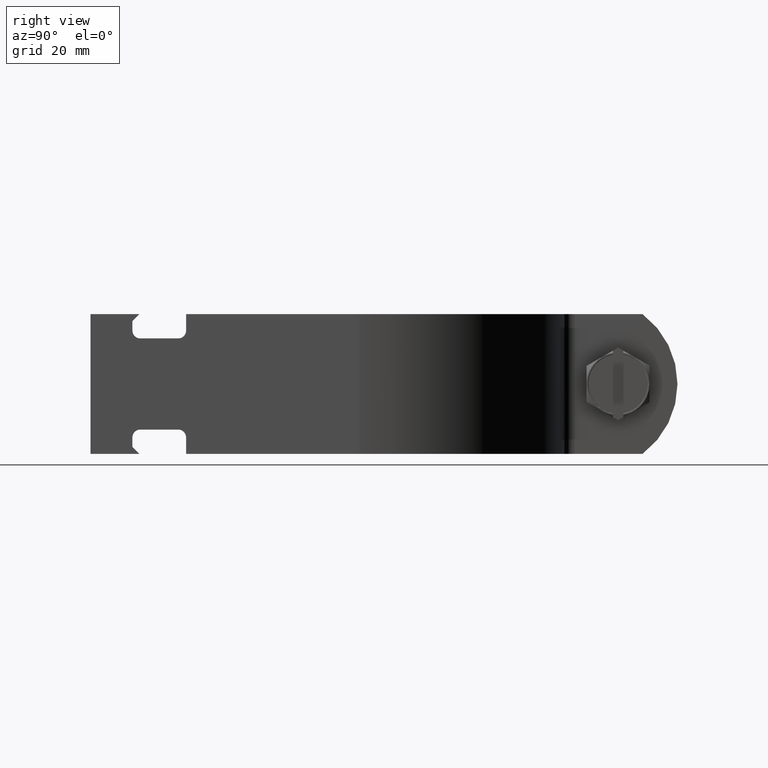
[diagram: clean part render]
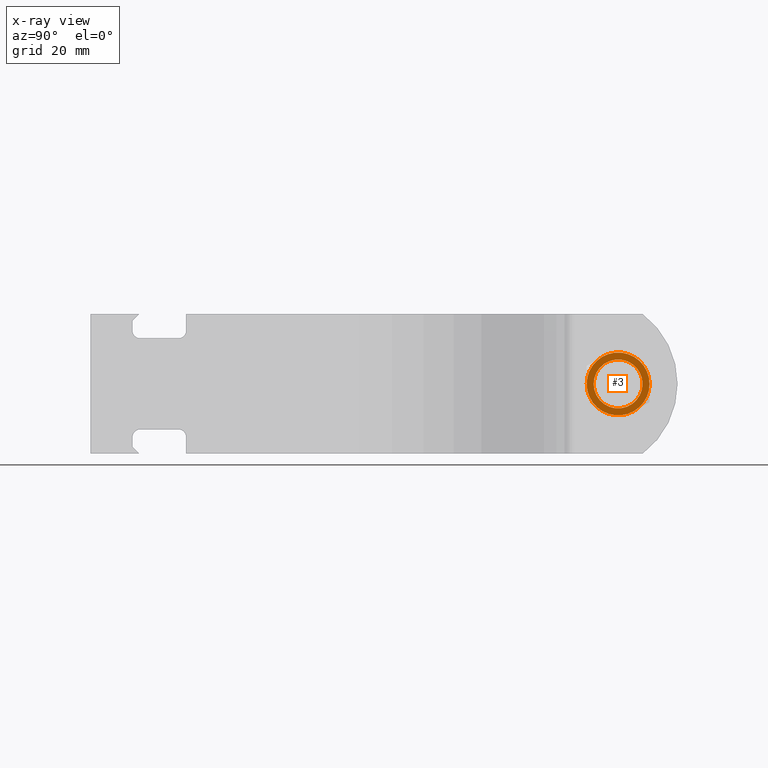
[diagram: x-ray — body ghosted, one internal face saturated and labeled with its STEP entity id]
A machine part, right view, then the same camera in x-ray: the body is ghosted and one INTERNAL B-rep face — a face not visible from any outside direction — is saturated and labeled: STEP entity #3.
In plain terms, the highlighted planar face has unit normal (-1, -0, -0).
Its self-contained STEP definition (entity closure, byte-faithful):
#3 = ADVANCED_FACE ( 'NONE', ( #2529, #2878 ), #307, .F. ) ;
#59 = CIRCLE ( 'NONE', #2191, 7.143749999999997158 ) ;
#102 = CIRCLE ( 'NONE', #534, 5.556249999999998579 ) ;
#138 = CARTESIAN_POINT ( 'NONE',  ( -5.000000000000005329, 53.18124999999997726, -9.720633968232258185E-16 ) ) ;
#174 = CARTESIAN_POINT ( 'NONE',  ( -5.000000000000004441, 47.62499999999997868, -2.916190190469623221E-16 ) ) ;
#212 = ORIENTED_EDGE ( 'NONE', *, *, #276, .T. ) ;
#225 = DIRECTION ( 'NONE',  ( 2.428309327701568291E-16, -1.000000000000000000, 1.776356839400249676E-15 ) ) ;
#276 = EDGE_CURVE ( 'NONE', #3082, #1053, #59, .T. ) ;
#285 = CARTESIAN_POINT ( 'NONE',  ( -5.000000000000005329, 53.18124999999997726, -9.720633968232258185E-16 ) ) ;
#291 = CARTESIAN_POINT ( 'NONE',  ( -5.000000000000003553, 56.75312499999996874, 6.186668978285080556 ) ) ;
#307 = PLANE ( 'NONE',  #1571 ) ;
#329 = CARTESIAN_POINT ( 'NONE',  ( -5.000000000000007994, 58.73749999999997584, -9.720633968232098440E-16 ) ) ;
#360 = VERTEX_POINT ( 'NONE', #174 ) ;
#420 = AXIS2_PLACEMENT_3D ( 'NONE', #2849, #1386, #225 ) ;
#534 = AXIS2_PLACEMENT_3D ( 'NONE', #3129, #1021, #2180 ) ;
#545 = CIRCLE ( 'NONE', #1089, 7.143749999999997158 ) ;
#575 = DIRECTION ( 'NONE',  ( 2.428309327701568291E-16, -1.000000000000000000, 1.776356839400249676E-15 ) ) ;
#626 = CARTESIAN_POINT ( 'NONE',  ( -5.000000000000005329, 53.18124999999997726, -9.720633968232258185E-16 ) ) ;
#650 = EDGE_CURVE ( 'NONE', #2725, #3082, #2441, .T. ) ;
#656 = CARTESIAN_POINT ( 'NONE',  ( -5.000000000000001776, 49.60937499999997868, 6.186668978285071674 ) ) ;
#893 = DIRECTION ( 'NONE',  ( 3.642463991552352437E-16, -1.000000000000000000, -3.552713678800499352E-15 ) ) ;
#916 = EDGE_CURVE ( 'NONE', #2725, #1313, #3551, .T. ) ;
#943 = CARTESIAN_POINT ( 'NONE',  ( -5.000000000000006217, 53.18124999999997726, -9.720633968232098440E-16 ) ) ;
#1020 = DIRECTION ( 'NONE',  ( 2.428309327701570757E-16, -1.000000000000000000, 0.000000000000000000 ) ) ;
#1021 = DIRECTION ( 'NONE',  ( -1.000000000000000000, -2.727869752446350788E-16, 0.000000000000000000 ) ) ;
#1031 = EDGE_LOOP ( 'NONE', ( #1468, #3765 ) ) ;
#1053 = VERTEX_POINT ( 'NONE', #3730 ) ;
#1089 = AXIS2_PLACEMENT_3D ( 'NONE', #626, #1456, #893 ) ;
#1104 = AXIS2_PLACEMENT_3D ( 'NONE', #2468, #3364, #1020 ) ;
#1137 = CIRCLE ( 'NONE', #2738, 7.143749999999997158 ) ;
#1257 = CARTESIAN_POINT ( 'NONE',  ( -5.000000000000004441, 60.32499999999996732, -9.720633968232258185E-16 ) ) ;
#1296 = DIRECTION ( 'NONE',  ( 1.000000000000000000, 3.035386659626957652E-16, 1.051488783018136909E-16 ) ) ;
#1313 = VERTEX_POINT ( 'NONE', #656 ) ;
#1386 = DIRECTION ( 'NONE',  ( 1.000000000000000000, 3.035386659626957652E-16, 1.051488783018136909E-16 ) ) ;
#1411 = ORIENTED_EDGE ( 'NONE', *, *, #650, .T. ) ;
#1438 = DIRECTION ( 'NONE',  ( 1.000000000000000000, 3.035386659626957652E-16, 1.051488783018136909E-16 ) ) ;
#1456 = DIRECTION ( 'NONE',  ( 1.000000000000000000, 3.035386659626957652E-16, 1.051488783018136909E-16 ) ) ;
#1461 = CARTESIAN_POINT ( 'NONE',  ( -5.000000000000001776, 49.60937499999998579, -6.186668978285078779 ) ) ;
#1468 = ORIENTED_EDGE ( 'NONE', *, *, #2402, .T. ) ;
#1571 = AXIS2_PLACEMENT_3D ( 'NONE', #3201, #3746, #1966 ) ;
#1576 = AXIS2_PLACEMENT_3D ( 'NONE', #3208, #2904, #3171 ) ;
#1659 = ORIENTED_EDGE ( 'NONE', *, *, #3422, .T. ) ;
#1966 = DIRECTION ( 'NONE',  ( 3.035386659626957652E-16, -1.000000000000000000, 0.000000000000000000 ) ) ;
#2097 = CARTESIAN_POINT ( 'NONE',  ( -5.000000000000000888, 46.03749999999998721, -9.720633968232258185E-16 ) ) ;
#2100 = VERTEX_POINT ( 'NONE', #329 ) ;
#2180 = DIRECTION ( 'NONE',  ( 3.122111992759158457E-16, -1.000000000000000000, 0.000000000000000000 ) ) ;
#2184 = EDGE_CURVE ( 'NONE', #360, #2100, #102, .T. ) ;
#2191 = AXIS2_PLACEMENT_3D ( 'NONE', #138, #1296, #2816 ) ;
#2402 = EDGE_CURVE ( 'NONE', #2100, #360, #3661, .T. ) ;
#2441 = CIRCLE ( 'NONE', #1576, 7.143749999999997158 ) ;
#2468 = CARTESIAN_POINT ( 'NONE',  ( -5.000000000000002665, 53.18124999999997726, -9.720633968232256213E-16 ) ) ;
#2529 = FACE_BOUND ( 'NONE', #1031, .T. ) ;
#2688 = VERTEX_POINT ( 'NONE', #291 ) ;
#2724 = ORIENTED_EDGE ( 'NONE', *, *, #916, .F. ) ;
#2725 = VERTEX_POINT ( 'NONE', #2097 ) ;
#2738 = AXIS2_PLACEMENT_3D ( 'NONE', #285, #1438, #575 ) ;
#2816 = DIRECTION ( 'NONE',  ( 2.428309327701568291E-16, -1.000000000000000000, -8.881784197001248379E-16 ) ) ;
#2831 = VERTEX_POINT ( 'NONE', #1257 ) ;
#2849 = CARTESIAN_POINT ( 'NONE',  ( -5.000000000000005329, 53.18124999999997726, -9.720633968232258185E-16 ) ) ;
#2878 = FACE_OUTER_BOUND ( 'NONE', #3337, .T. ) ;
#2904 = DIRECTION ( 'NONE',  ( 1.000000000000000000, 3.035386659626957652E-16, 1.051488783018136909E-16 ) ) ;
#2923 = AXIS2_PLACEMENT_3D ( 'NONE', #943, #3549, #3238 ) ;
#2988 = CIRCLE ( 'NONE', #420, 7.143749999999997158 ) ;
#3082 = VERTEX_POINT ( 'NONE', #1461 ) ;
#3129 = CARTESIAN_POINT ( 'NONE',  ( -5.000000000000006217, 53.18124999999997726, -9.720633968232098440E-16 ) ) ;
#3171 = DIRECTION ( 'NONE',  ( 2.428309327701568291E-16, -1.000000000000000000, 0.000000000000000000 ) ) ;
#3201 = CARTESIAN_POINT ( 'NONE',  ( -4.999999999999988454, -1.517693329813475424E-15, -5.257443915090672834E-16 ) ) ;
#3208 = CARTESIAN_POINT ( 'NONE',  ( -5.000000000000005329, 53.18124999999997726, -9.720633968232258185E-16 ) ) ;
#3238 = DIRECTION ( 'NONE',  ( 3.122111992759158457E-16, -1.000000000000000000, 0.000000000000000000 ) ) ;
#3326 = EDGE_CURVE ( 'NONE', #1053, #2831, #2988, .T. ) ;
#3337 = EDGE_LOOP ( 'NONE', ( #2724, #1411, #212, #3519, #3455, #1659 ) ) ;
#3354 = EDGE_CURVE ( 'NONE', #2831, #2688, #1137, .T. ) ;
#3364 = DIRECTION ( 'NONE',  ( -1.000000000000000000, -2.045902314334763214E-16, 0.000000000000000000 ) ) ;
#3422 = EDGE_CURVE ( 'NONE', #2688, #1313, #545, .T. ) ;
#3455 = ORIENTED_EDGE ( 'NONE', *, *, #3354, .T. ) ;
#3519 = ORIENTED_EDGE ( 'NONE', *, *, #3326, .T. ) ;
#3549 = DIRECTION ( 'NONE',  ( -1.000000000000000000, -2.727869752446350788E-16, 0.000000000000000000 ) ) ;
#3551 = CIRCLE ( 'NONE', #1104, 7.143749999999990052 ) ;
#3661 = CIRCLE ( 'NONE', #2923, 5.556249999999998579 ) ;
#3730 = CARTESIAN_POINT ( 'NONE',  ( -5.000000000000003553, 56.75312499999997584, -6.186668978285077891 ) ) ;
#3746 = DIRECTION ( 'NONE',  ( -1.000000000000000000, -3.035386659626957652E-16, -1.051488783018136909E-16 ) ) ;
#3765 = ORIENTED_EDGE ( 'NONE', *, *, #2184, .T. ) ;